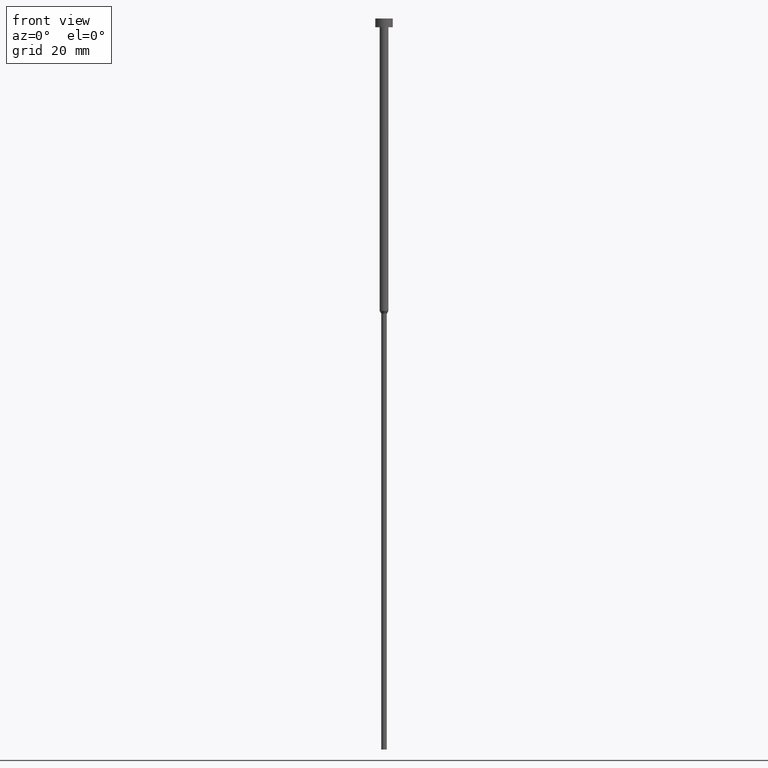
[diagram: clean part render]
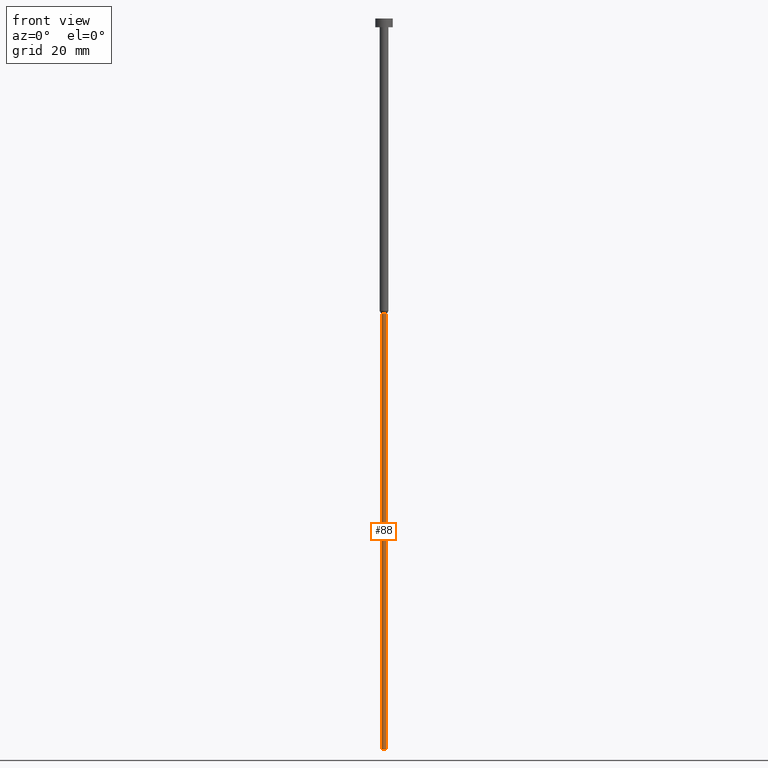
[diagram: same view with one face highlighted and labeled with its STEP entity id]
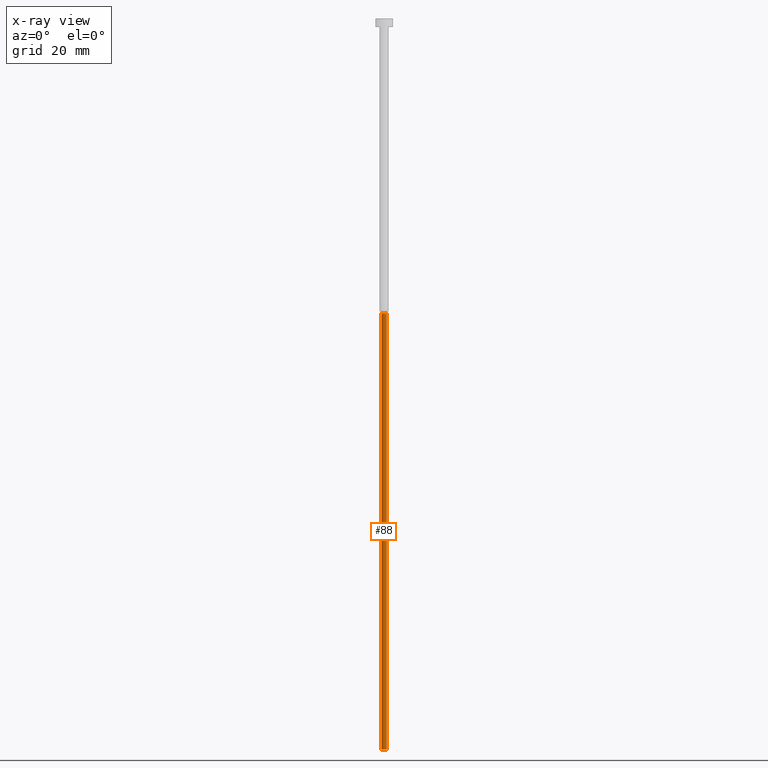
[diagram: x-ray of the same camera — body ghosted, the highlighted face saturated]
A machine part, front view. The second image highlights one B-rep face of the part: STEP entity #88.
The next image is the same camera in x-ray: the body ghosted, the highlighted face saturated — about 0% of this face is hidden behind the body in this view.
In plain terms, the highlighted cylindrical surface (edge-blend (fillet) strip) has radius 0.95 mm, axis along (-0, -0, 1).
Its self-contained STEP definition (entity closure, byte-faithful):
#6 = ORIENTED_EDGE ( 'NONE', *, *, #353, .T. ) ;
#10 = VECTOR ( 'NONE', #306, 1000.000000000000000 ) ;
#12 = CARTESIAN_POINT ( 'NONE',  ( 0.9500000000000000666, 0.000000000000000000, -100.9526279441628702 ) ) ;
#26 = LINE ( 'NONE', #323, #286 ) ;
#28 = FACE_OUTER_BOUND ( 'NONE', #200, .T. ) ;
#34 = DIRECTION ( 'NONE',  ( 1.000000000000000000, 0.000000000000000000, 0.000000000000000000 ) ) ;
#44 = VERTEX_POINT ( 'NONE', #212 ) ;
#48 = EDGE_CURVE ( 'NONE', #44, #227, #26, .T. ) ;
#60 = CARTESIAN_POINT ( 'NONE',  ( 0.9499999999999998446, 0.000000000000000000, -250.0000000000000000 ) ) ;
#82 = AXIS2_PLACEMENT_3D ( 'NONE', #338, #133, #226 ) ;
#88 = ADVANCED_FACE ( 'NONE', ( #28 ), #297, .T. ) ;
#102 = LINE ( 'NONE', #131, #10 ) ;
#131 = CARTESIAN_POINT ( 'NONE',  ( 0.9499999999999999556, 0.000000000000000000, 0.000000000000000000 ) ) ;
#133 = DIRECTION ( 'NONE',  ( -0.000000000000000000, -0.000000000000000000, 1.000000000000000000 ) ) ;
#145 = CARTESIAN_POINT ( 'NONE',  ( 0.000000000000000000, 0.000000000000000000, 0.000000000000000000 ) ) ;
#164 = EDGE_CURVE ( 'NONE', #44, #232, #341, .T. ) ;
#175 = DIRECTION ( 'NONE',  ( 1.000000000000000000, 0.000000000000000000, 0.000000000000000000 ) ) ;
#195 = DIRECTION ( 'NONE',  ( -0.000000000000000000, -0.000000000000000000, 1.000000000000000000 ) ) ;
#200 = EDGE_LOOP ( 'NONE', ( #347, #312, #6, #281 ) ) ;
#201 = CARTESIAN_POINT ( 'NONE',  ( 0.000000000000000000, 0.000000000000000000, -100.9526279441628702 ) ) ;
#211 = CARTESIAN_POINT ( 'NONE',  ( -0.9500000000000001776, 1.163414459189985929E-16, -100.9526279441628702 ) ) ;
#212 = CARTESIAN_POINT ( 'NONE',  ( -0.9499999999999998446, 1.163414459189985682E-16, -250.0000000000000000 ) ) ;
#226 = DIRECTION ( 'NONE',  ( 1.000000000000000000, 0.000000000000000000, 0.000000000000000000 ) ) ;
#227 = VERTEX_POINT ( 'NONE', #211 ) ;
#232 = VERTEX_POINT ( 'NONE', #60 ) ;
#256 = EDGE_CURVE ( 'NONE', #227, #278, #277, .T. ) ;
#277 = CIRCLE ( 'NONE', #325, 0.9500000000000000666 ) ;
#278 = VERTEX_POINT ( 'NONE', #12 ) ;
#281 = ORIENTED_EDGE ( 'NONE', *, *, #256, .F. ) ;
#286 = VECTOR ( 'NONE', #324, 1000.000000000000000 ) ;
#297 = CYLINDRICAL_SURFACE ( 'NONE', #321, 0.9499999999999999556 ) ;
#306 = DIRECTION ( 'NONE',  ( -0.000000000000000000, -0.000000000000000000, 1.000000000000000000 ) ) ;
#312 = ORIENTED_EDGE ( 'NONE', *, *, #164, .T. ) ;
#321 = AXIS2_PLACEMENT_3D ( 'NONE', #145, #195, #34 ) ;
#323 = CARTESIAN_POINT ( 'NONE',  ( -0.9499999999999999556, 1.163414459189985682E-16, 0.000000000000000000 ) ) ;
#324 = DIRECTION ( 'NONE',  ( -0.000000000000000000, -0.000000000000000000, 1.000000000000000000 ) ) ;
#325 = AXIS2_PLACEMENT_3D ( 'NONE', #201, #339, #175 ) ;
#338 = CARTESIAN_POINT ( 'NONE',  ( 0.000000000000000000, 0.000000000000000000, -250.0000000000000000 ) ) ;
#339 = DIRECTION ( 'NONE',  ( -0.000000000000000000, -0.000000000000000000, 1.000000000000000000 ) ) ;
#341 = CIRCLE ( 'NONE', #82, 0.9499999999999998446 ) ;
#347 = ORIENTED_EDGE ( 'NONE', *, *, #48, .F. ) ;
#353 = EDGE_CURVE ( 'NONE', #232, #278, #102, .T. ) ;